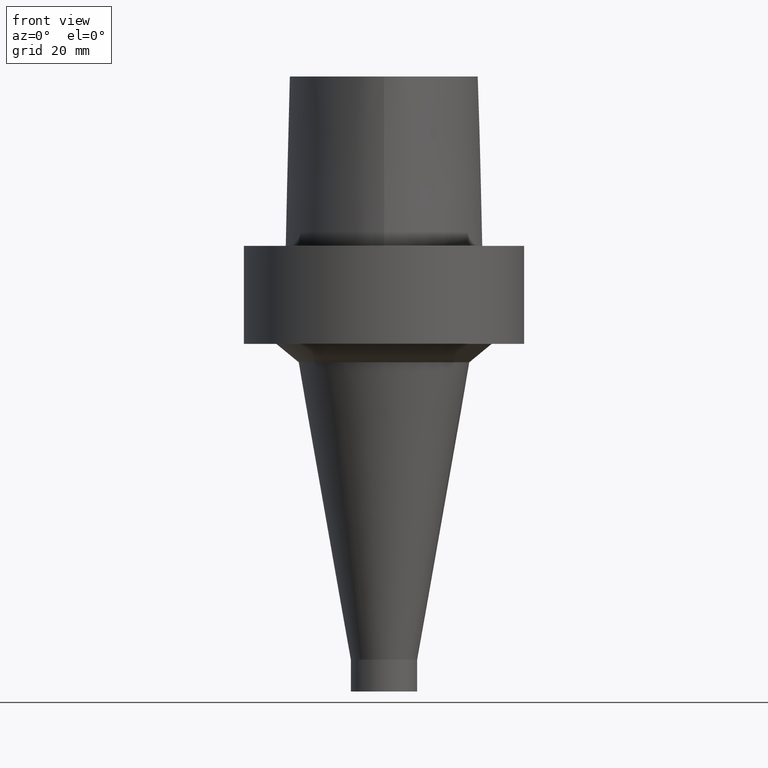
[diagram: clean part render]
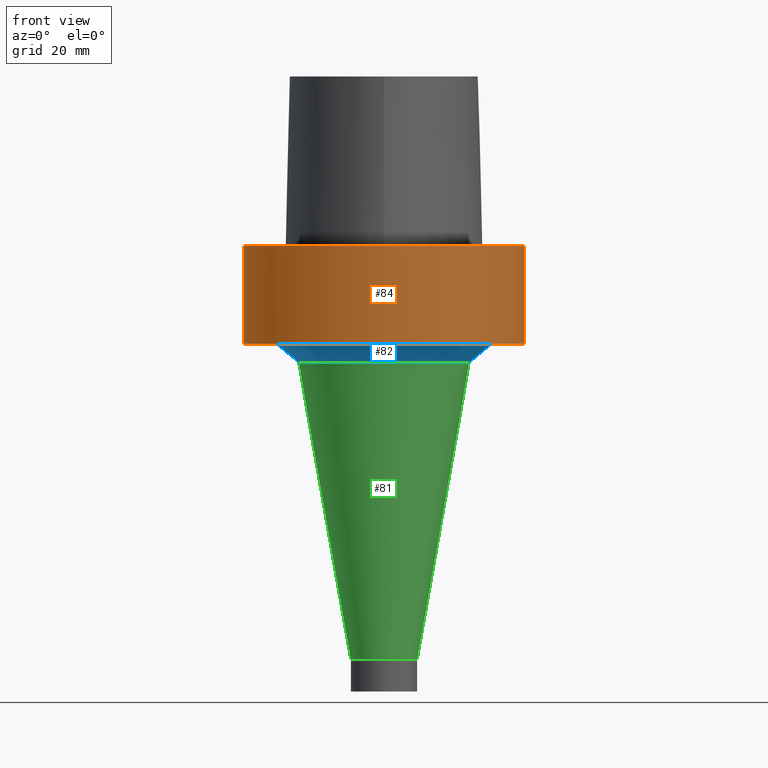
[diagram: same view with three faces highlighted in distinct colors, each labeled with its STEP entity id]
A machine part, front view with three faces highlighted in distinct colors.
Their STEP definitions:

[orange] entity #84 — the highlighted cylindrical surface (bore or boss wall) has radius 31.4925 mm, axis along (0, 0, -1).
#84=ADVANCED_FACE('',(#109,#110),#111,.T.);
#109=FACE_BOUND('',#275,.T.);
#110=FACE_BOUND('',#276,.T.);
#111=CYLINDRICAL_SURFACE('',#277,31.4925);
#275=EDGE_LOOP('',(#324));
#276=EDGE_LOOP('',(#325));
#277=AXIS2_PLACEMENT_3D('',#326,#327,#328);
#324=ORIENTED_EDGE('',*,*,#349,.F.);
#325=ORIENTED_EDGE('',*,*,#348,.T.);
#326=CARTESIAN_POINT('',(6.73555739531044E-016,1.34711147906209E-015,-11.0));
#327=DIRECTION('',(6.12323399573677E-017,1.22464679914735E-016,-1.0));
#328=DIRECTION('',(-1.23259516440783E-032,1.0,1.22464679914735E-016));
#348=EDGE_CURVE('',#371,#371,#372,.T.);
#349=EDGE_CURVE('',#373,#373,#374,.T.);
#371=VERTEX_POINT('',#462);
#372=CIRCLE('',#463,31.4925);
#373=VERTEX_POINT('',#464);
#374=CIRCLE('',#465,31.4925);
#462=CARTESIAN_POINT('',(1.34711147906209E-015,31.4925,-22.0));
#463=AXIS2_PLACEMENT_3D('',#484,#485,#486);
#464=CARTESIAN_POINT('',(-3.88175032151136E-031,31.4925,3.8567189322148E-015));
#465=AXIS2_PLACEMENT_3D('',#487,#488,#489);
#484=CARTESIAN_POINT('',(1.34711147906209E-015,2.69422295812418E-015,-22.0));
#485=DIRECTION('',(-6.12323399573677E-017,-1.22464679914735E-016,1.0));
#486=DIRECTION('',(-1.23259516440783E-032,1.0,1.22464679914735E-016));
#487=CARTESIAN_POINT('',(0.0,0.0,0.0));
#488=DIRECTION('',(-6.12323399573677E-017,-1.22464679914735E-016,1.0));
#489=DIRECTION('',(-1.23259516440783E-032,1.0,1.22464679914735E-016));

[blue] entity #82 — the highlighted conical surface has half-angle 50.003 deg.
#82=ADVANCED_FACE('',(#103,#104),#105,.T.);
#103=FACE_BOUND('',#269,.T.);
#104=FACE_BOUND('',#270,.T.);
#105=CONICAL_SURFACE('',#271,21.73309814,0.872714372647345);
#269=EDGE_LOOP('',(#314));
#270=EDGE_LOOP('',(#315));
#271=AXIS2_PLACEMENT_3D('',#316,#317,#318);
#314=ORIENTED_EDGE('',*,*,#347,.F.);
#315=ORIENTED_EDGE('',*,*,#346,.T.);
#316=CARTESIAN_POINT('',(1.47359511942315E-015,2.9471902388463E-015,-24.065634605));
#317=DIRECTION('',(-6.12323399573677E-017,-1.22464679914735E-016,1.0));
#318=DIRECTION('',(-1.23259516440783E-032,1.0,1.22464679914735E-016));
#346=EDGE_CURVE('',#367,#367,#368,.T.);
#347=EDGE_CURVE('',#369,#369,#370,.T.);
#367=VERTEX_POINT('',#458);
#368=CIRCLE('',#459,19.27112196);
#369=VERTEX_POINT('',#460);
#370=CIRCLE('',#461,24.19507432);
#458=CARTESIAN_POINT('',(1.60007875978421E-015,19.27112196,-26.13126921));
#459=AXIS2_PLACEMENT_3D('',#478,#479,#480);
#460=CARTESIAN_POINT('',(1.34711147906209E-015,24.19507432,-22.0));
#461=AXIS2_PLACEMENT_3D('',#481,#482,#483);
#478=CARTESIAN_POINT('',(1.60007875978421E-015,3.20015751956843E-015,-26.13126921));
#479=DIRECTION('',(-6.12323399573677E-017,-1.22464679914735E-016,1.0));
#480=DIRECTION('',(-1.23259516440783E-032,1.0,1.22464679914735E-016));
#481=CARTESIAN_POINT('',(1.34711147906209E-015,2.69422295812418E-015,-22.0));
#482=DIRECTION('',(-6.12323399573677E-017,-1.22464679914735E-016,1.0));
#483=DIRECTION('',(-1.23259516440783E-032,1.0,1.22464679914735E-016));

[green] entity #81 — the highlighted conical surface has half-angle 10.006 deg.
#81=ADVANCED_FACE('',(#100,#101),#102,.T.);
#100=FACE_BOUND('',#266,.T.);
#101=FACE_BOUND('',#267,.T.);
#102=CONICAL_SURFACE('',#268,13.38556098,0.17463241702535);
#266=EDGE_LOOP('',(#309));
#267=EDGE_LOOP('',(#310));
#268=AXIS2_PLACEMENT_3D('',#311,#312,#313);
#309=ORIENTED_EDGE('',*,*,#346,.F.);
#310=ORIENTED_EDGE('',*,*,#345,.T.);
#311=CARTESIAN_POINT('',(3.64274471173923E-015,7.28548942347845E-015,-59.49053579));
#312=DIRECTION('',(-6.12323399573677E-017,-1.22464679914735E-016,1.0));
#313=DIRECTION('',(-1.23259516440783E-032,1.0,1.22464679914735E-016));
#345=EDGE_CURVE('',#365,#365,#366,.T.);
#346=EDGE_CURVE('',#367,#367,#368,.T.);
#365=VERTEX_POINT('',#456);
#366=CIRCLE('',#457,7.5);
#367=VERTEX_POINT('',#458);
#368=CIRCLE('',#459,19.27112196);
#456=CARTESIAN_POINT('',(5.68541066369424E-015,7.50000000000001,-92.84980237));
#457=AXIS2_PLACEMENT_3D('',#475,#476,#477);
#458=CARTESIAN_POINT('',(1.60007875978421E-015,19.27112196,-26.13126921));
#459=AXIS2_PLACEMENT_3D('',#478,#479,#480);
#475=CARTESIAN_POINT('',(5.68541066369424E-015,1.13708213273885E-014,-92.84980237));
#476=DIRECTION('',(-6.12323399573677E-017,-1.22464679914735E-016,1.0));
#477=DIRECTION('',(-1.23259516440783E-032,1.0,1.22464679914735E-016));
#478=CARTESIAN_POINT('',(1.60007875978421E-015,3.20015751956843E-015,-26.13126921));
#479=DIRECTION('',(-6.12323399573677E-017,-1.22464679914735E-016,1.0));
#480=DIRECTION('',(-1.23259516440783E-032,1.0,1.22464679914735E-016));